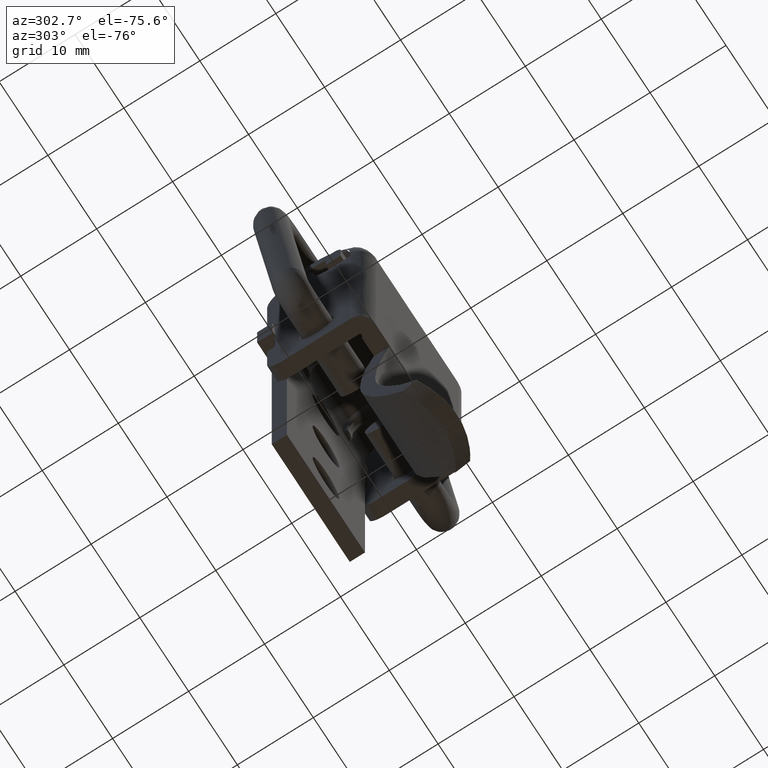
[diagram: clean part render]
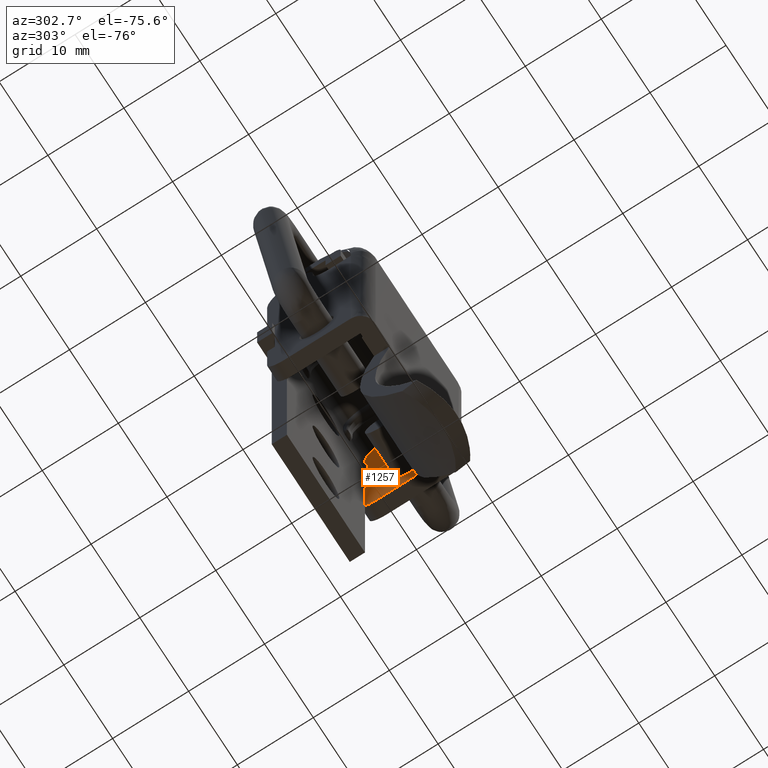
[diagram: same view with one face highlighted and labeled with its STEP entity id]
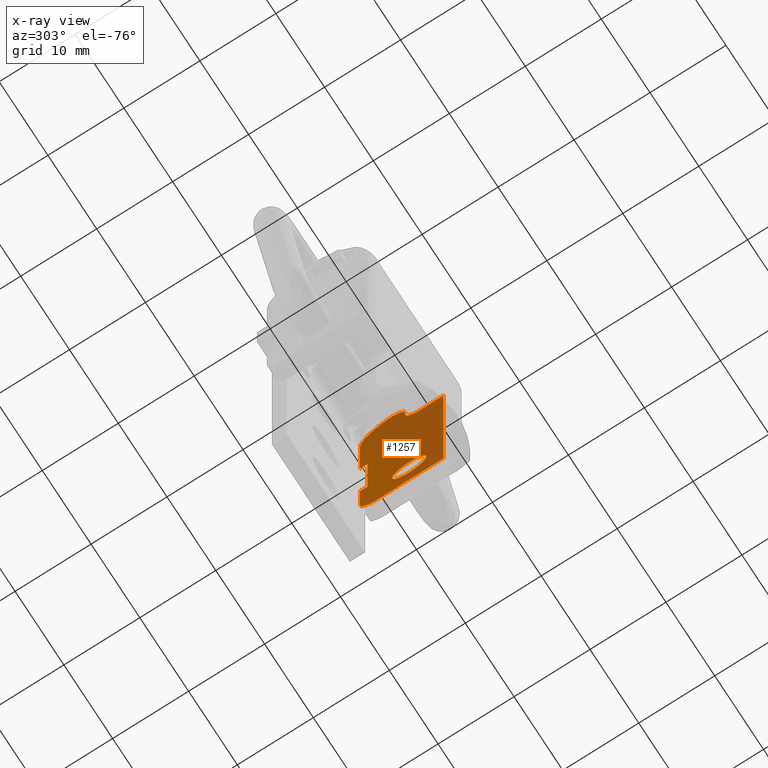
[diagram: x-ray of the same camera — body ghosted, the highlighted face saturated]
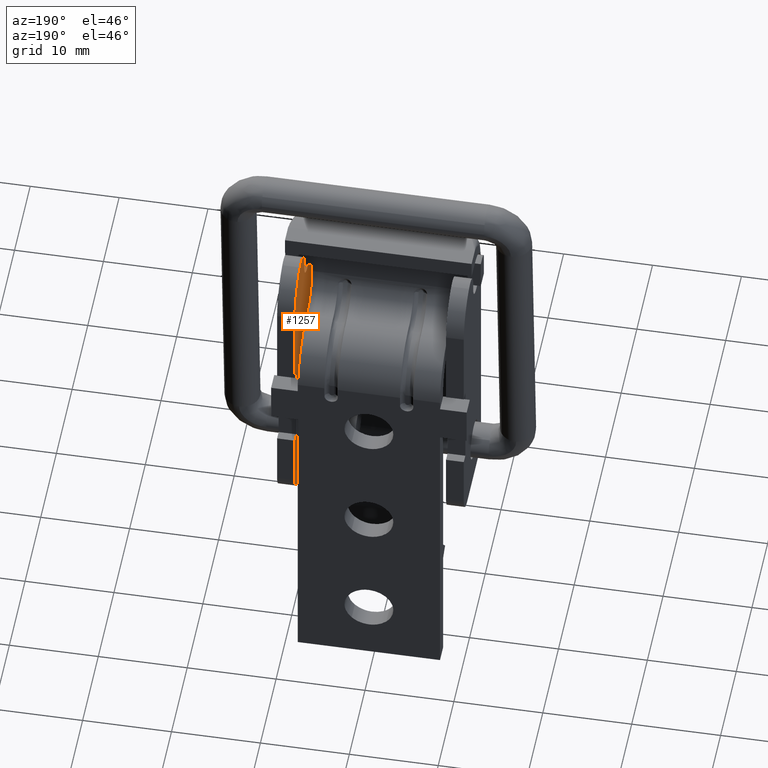
[diagram: same view with one face highlighted and labeled with its STEP entity id]
A machine part, auxiliary view. The second image highlights one B-rep face of the part: STEP entity #1257.
The next image is the same camera in x-ray: the body ghosted, the highlighted face saturated — about 68% of this face is hidden behind the body in this view.
A second angle (auxiliary view) of the same face is appended — the face is thin or edge-on in the first view.
In plain terms, the highlighted face is a freeform B-spline surface patch.
Its self-contained STEP definition (entity closure, byte-faithful):
#83=CARTESIAN_POINT('',(8.500000000000000,-1.612464560093486,1.569221775871860));
#84=VERTEX_POINT('',#83);
#90=CARTESIAN_POINT('',(8.500000000000000,0.0,2.250000000000000));
#91=VERTEX_POINT('',#90);
#92=CARTESIAN_POINT('',(8.500000000000000,0.0,2.250000000000000));
#93=CARTESIAN_POINT('',(8.500000000000011,-0.205995949104330,2.250057413758236));
#94=CARTESIAN_POINT('',(8.499999999999998,-0.599214729108291,2.195637701792308));
#95=CARTESIAN_POINT('',(8.499999999999991,-1.155582265871528,1.960712150496124));
#96=CARTESIAN_POINT('',(8.500000000000004,-1.468847847887490,1.716904368780269));
#97=CARTESIAN_POINT('',(8.500000000000000,-1.612464560093486,1.569221775871860));
#98=B_SPLINE_CURVE_WITH_KNOTS('',3,(#92,#93,#94,#95,#96,#97),.UNSPECIFIED.,.F.,.U.,(4,1,1,4),(0.000000024822547,0.617976578511312,1.179759103934288,1.797735657594886),.UNSPECIFIED.);
#99=EDGE_CURVE('',#91,#84,#98,.T.);
#101=CARTESIAN_POINT('',(8.500000000000000,2.249999999999802,0.000000943079006));
#102=VERTEX_POINT('',#101);
#103=CARTESIAN_POINT('',(8.500000000000000,2.249999999999802,0.000000943079006));
#104=CARTESIAN_POINT('',(8.499999999999998,2.250018007315028,0.147259344740279));
#105=CARTESIAN_POINT('',(8.500000000000000,2.220983534867859,0.441777002720753));
#106=CARTESIAN_POINT('',(8.500000000000011,2.089460778810403,0.875441199690906));
#107=CARTESIAN_POINT('',(8.499999999999993,1.873249016940023,1.274024443076075));
#108=CARTESIAN_POINT('',(8.500000000000005,1.593388052067294,1.606612430470988));
#109=CARTESIAN_POINT('',(8.500000000000005,1.243487349539739,1.893786026483920));
#110=CARTESIAN_POINT('',(8.499999999999986,0.726959097543601,2.165886580348997));
#111=CARTESIAN_POINT('',(8.500000000000021,0.276155375025387,2.250252421850397));
#112=CARTESIAN_POINT('',(8.500000000000000,0.0,2.250000000000000));
#113=B_SPLINE_CURVE_WITH_KNOTS('',3,(#103,#104,#105,#106,#107,#108,#109,#110,#111,#112),.UNSPECIFIED.,.F.,.U.,(4,1,1,1,1,1,1,4),(0.000000089899896,0.441774589114846,0.883578437799245,1.352984395066490,1.794741126176703,2.181330836682087,2.705959185706610,3.534313379939610),.UNSPECIFIED.);
#114=EDGE_CURVE('',#102,#91,#113,.T.);
#116=CARTESIAN_POINT('',(8.500000000000000,0.0,-2.250000000000000));
#117=VERTEX_POINT('',#116);
#118=CARTESIAN_POINT('',(8.500000000000000,0.0,-2.250000000000000));
#119=CARTESIAN_POINT('',(8.500000000000004,0.174876514031438,-2.250037262948710));
#120=CARTESIAN_POINT('',(8.500000000000005,0.506197661065653,-2.211173926283071));
#121=CARTESIAN_POINT('',(8.499999999999963,0.960278516402232,-2.051851052238468));
#122=CARTESIAN_POINT('',(8.500000000000091,1.325148635494998,-1.833119226005228));
#123=CARTESIAN_POINT('',(8.499999999999989,1.693804548871910,-1.511271835894335));
#124=CARTESIAN_POINT('',(8.499999999999989,1.993549165087641,-1.096555485874555));
#125=CARTESIAN_POINT('',(8.500000000000036,2.203446675744841,-0.552201751470571));
#126=CARTESIAN_POINT('',(8.499999999999933,2.250059460268517,-0.193284573321796));
#127=CARTESIAN_POINT('',(8.500000000000000,2.249999999999802,0.000000943079006));
#128=B_SPLINE_CURVE_WITH_KNOTS('',3,(#118,#119,#120,#121,#122,#123,#124,#125,#126,#127),.UNSPECIFIED.,.F.,.U.,(4,1,1,1,1,1,1,4),(0.000000089571876,0.524621855439952,0.994026821791030,1.435833792798051,1.794741666217927,2.457447310100589,2.954473065062495,3.534314443016120),.UNSPECIFIED.);
#129=EDGE_CURVE('',#117,#102,#128,.T.);
#131=CARTESIAN_POINT('',(8.500000000000000,-1.658874139306020,-1.520078171301804));
#132=VERTEX_POINT('',#131);
#133=CARTESIAN_POINT('',(8.500000000000000,-1.658874139306020,-1.520078171301804));
#134=CARTESIAN_POINT('',(8.500000000000007,-1.507972378416117,-1.684894541594854));
#135=CARTESIAN_POINT('',(8.499999999999995,-1.232926194104110,-1.907140146235586));
#136=CARTESIAN_POINT('',(8.500000000000002,-0.670203447280249,-2.176825329095858));
#137=CARTESIAN_POINT('',(8.500000000000000,-0.272075368996333,-2.250253278948949));
#138=CARTESIAN_POINT('',(8.500000000000000,0.0,-2.250000000000000));
#139=B_SPLINE_CURVE_WITH_KNOTS('',3,(#133,#134,#135,#136,#137,#138),.UNSPECIFIED.,.F.,.U.,(4,1,1,4),(0.000000026457851,0.670356070786003,1.049241503063118,1.865333714303394),.UNSPECIFIED.);
#140=EDGE_CURVE('',#132,#117,#139,.T.);
#226=CARTESIAN_POINT('',(8.500000000000000,-2.249999999999802,-0.000000943079026));
#227=VERTEX_POINT('',#226);
#228=CARTESIAN_POINT('',(8.500000000000000,-2.249999999999802,-0.000000943079026));
#229=CARTESIAN_POINT('',(8.500000000000004,-2.250205818783069,-0.260810641298893));
#230=CARTESIAN_POINT('',(8.500000000000002,-2.179666763247639,-0.660522819976244));
#231=CARTESIAN_POINT('',(8.499999999999993,-1.941411350246428,-1.165909998933466));
#232=CARTESIAN_POINT('',(8.500000000000005,-1.764602079013604,-1.404734960936116));
#233=CARTESIAN_POINT('',(8.500000000000000,-1.658874139306020,-1.520078171301804));
#234=B_SPLINE_CURVE_WITH_KNOTS('',3,(#228,#229,#230,#231,#232,#233),.UNSPECIFIED.,.F.,.U.,(4,1,1,4),(0.000000010073891,0.782347575375367,1.199599238936291,1.669007660436724),.UNSPECIFIED.);
#235=EDGE_CURVE('',#227,#132,#234,.T.);
#237=CARTESIAN_POINT('',(8.500000000000000,-1.612464560093486,1.569221775871860));
#238=CARTESIAN_POINT('',(8.500000000000011,-1.776586189426513,1.400768279057042));
#239=CARTESIAN_POINT('',(8.499999999999993,-1.977130760018655,1.116493696190392));
#240=CARTESIAN_POINT('',(8.500000000000014,-2.195614570542429,0.578788439400664));
#241=CARTESIAN_POINT('',(8.499999999999998,-2.250122548874541,0.235179651512645));
#242=CARTESIAN_POINT('',(8.500000000000000,-2.249999999999802,-0.000000943079026));
#243=B_SPLINE_CURVE_WITH_KNOTS('',3,(#237,#238,#239,#240,#241,#242),.UNSPECIFIED.,.F.,.U.,(4,1,1,4),(0.000000020894632,0.705490598085889,1.031088454538808,1.736579031758140),.UNSPECIFIED.);
#244=EDGE_CURVE('',#84,#227,#243,.T.);
#1119=CARTESIAN_POINT('',(8.500000000000000,-5.049449978679779,28.967729769470399));
#1120=CARTESIAN_POINT('',(8.500000000000000,7.049450273722947,28.967729769470399));
#1121=CARTESIAN_POINT('',(8.500000000000000,-5.049449978679779,-7.139758048306728));
#1122=CARTESIAN_POINT('',(8.500000000000000,7.049450273722947,-7.139758048306728));
#1123=B_SPLINE_SURFACE_WITH_KNOTS('',1,1,((#1119,#1121),(#1120,#1122)),.UNSPECIFIED.,.F.,.F.,.U.,(2,2),(2,2),(0.0,12.098900252402730),(0.0,36.107487817777127),.UNSPECIFIED.);
#1124=CARTESIAN_POINT('',(8.500000000000000,-4.499999999999915,-5.500000000000000));
#1125=VERTEX_POINT('',#1124);
#1126=CARTESIAN_POINT('',(8.500000000000000,4.250000000000000,-5.500000000000000));
#1127=VERTEX_POINT('',#1126);
#1128=CARTESIAN_POINT('',(8.500000000000000,-4.499999999999915,-5.500000000000000));
#1129=CARTESIAN_POINT('',(8.500000000000000,4.250000000000000,-5.500000000000000));
#1130=QUASI_UNIFORM_CURVE('',1,(#1128,#1129),.UNSPECIFIED.,.F.,.U.);
#1131=EDGE_CURVE('',#1125,#1127,#1130,.T.);
#1132=ORIENTED_EDGE('',*,*,#1131,.F.);
#1133=CARTESIAN_POINT('',(8.500000000000000,-4.499999999999915,22.500000000000000));
#1134=VERTEX_POINT('',#1133);
#1135=CARTESIAN_POINT('',(8.500000000000000,-4.499999999999915,22.500000000000000));
#1136=CARTESIAN_POINT('',(8.500000000000000,-4.499999999999915,-5.500000000000000));
#1137=QUASI_UNIFORM_CURVE('',1,(#1135,#1136),.UNSPECIFIED.,.F.,.U.);
#1138=EDGE_CURVE('',#1134,#1125,#1137,.T.);
#1139=ORIENTED_EDGE('',*,*,#1138,.F.);
#1140=CARTESIAN_POINT('',(8.500000000000000,-1.499999999999914,22.500000000000000));
#1141=VERTEX_POINT('',#1140);
#1142=CARTESIAN_POINT('',(8.500000000000000,-4.499999999999915,22.500000000000000));
#1143=CARTESIAN_POINT('',(8.500000000000000,-1.499999999999914,22.500000000000000));
#1144=QUASI_UNIFORM_CURVE('',1,(#1142,#1143),.UNSPECIFIED.,.F.,.U.);
#1145=EDGE_CURVE('',#1134,#1141,#1144,.T.);
#1146=ORIENTED_EDGE('',*,*,#1145,.T.);
#1147=CARTESIAN_POINT('',(8.500000000000000,0.500000000000000,24.500000000000000));
#1148=VERTEX_POINT('',#1147);
#1149=CARTESIAN_POINT('',(8.500000000000000,-1.499999999999914,22.500000000000000));
#1150=CARTESIAN_POINT('',(8.500000000000000,-1.287270726187100,22.499873417525571));
#1151=CARTESIAN_POINT('',(8.500000000000004,-0.943739909201290,22.555361138875629));
#1152=CARTESIAN_POINT('',(8.499999999999988,-0.537913056102324,22.735293748458950));
#1153=CARTESIAN_POINT('',(8.500000000000009,-0.237805520769674,22.935830795569920));
#1154=CARTESIAN_POINT('',(8.500000000000002,0.071887561663161,23.230534625474110));
#1155=CARTESIAN_POINT('',(8.500000000000000,0.301923643167067,23.593863441175628));
#1156=CARTESIAN_POINT('',(8.500000000000020,0.462175408421175,24.041886723843351));
#1157=CARTESIAN_POINT('',(8.499999999999991,0.500065293338141,24.320003954297071));
#1158=CARTESIAN_POINT('',(8.500000000000000,0.500000000000000,24.500000000000000));
#1159=B_SPLINE_CURVE_WITH_KNOTS('',3,(#1149,#1150,#1151,#1152,#1153,#1154,#1155,#1156,#1157,#1158),.UNSPECIFIED.,.F.,.U.,(4,1,1,1,1,1,1,4),(0.000000039029129,0.638151969917336,1.030863850941391,1.325399081861064,1.718096464635295,2.307164912914421,2.601698795142947,3.141671488668994),.UNSPECIFIED.);
#1160=EDGE_CURVE('',#1141,#1148,#1159,.T.);
#1161=ORIENTED_EDGE('',*,*,#1160,.T.);
#1162=CARTESIAN_POINT('',(8.500000000000000,0.500000000000000,25.328427124746099));
#1163=VERTEX_POINT('',#1162);
#1164=CARTESIAN_POINT('',(8.500000000000000,0.500000000000000,24.500000000000000));
#1165=CARTESIAN_POINT('',(8.500000000000000,0.500000000000000,25.328427124746099));
#1166=QUASI_UNIFORM_CURVE('',1,(#1164,#1165),.UNSPECIFIED.,.F.,.U.);
#1167=EDGE_CURVE('',#1148,#1163,#1166,.T.);
#1168=ORIENTED_EDGE('',*,*,#1167,.T.);
#1169=CARTESIAN_POINT('',(8.500000000000000,3.166666666666610,27.214045207910250));
#1170=VERTEX_POINT('',#1169);
#1171=CARTESIAN_POINT('',(8.500000000000000,3.166666666666610,27.214045207910250));
#1172=CARTESIAN_POINT('',(8.500000000000005,3.044705952486789,27.257178923644389));
#1173=CARTESIAN_POINT('',(8.499999999999998,2.772966455594129,27.324471583121959));
#1174=CARTESIAN_POINT('',(8.499999999999989,2.292573667427833,27.340816197151170));
#1175=CARTESIAN_POINT('',(8.500000000000028,1.772992812455864,27.220609663087838));
#1176=CARTESIAN_POINT('',(8.499999999999956,1.300029710373985,26.955391380001242));
#1177=CARTESIAN_POINT('',(8.500000000000050,0.981873465817354,26.650044809181260));
#1178=CARTESIAN_POINT('',(8.499999999999954,0.729576258724652,26.290663026664291));
#1179=CARTESIAN_POINT('',(8.499999999999927,0.548440522340913,25.865774992003018));
#1180=CARTESIAN_POINT('',(8.500000000000252,0.499941550817590,25.507551239456561));
#1181=CARTESIAN_POINT('',(8.500000000000000,0.500000000000000,25.328427124746099));
#1182=B_SPLINE_CURVE_WITH_KNOTS('',3,(#1171,#1172,#1173,#1174,#1175,#1176,#1177,#1178,#1179,#1180,#1181),.UNSPECIFIED.,.F.,.U.,(4,1,1,1,1,1,1,1,4),(0.000000150485084,0.388094550435460,0.835910004527804,1.432993086791058,1.970334179347815,2.448015659424339,2.746559099747779,3.283937327322817,3.821301945272779),.UNSPECIFIED.);
#1183=EDGE_CURVE('',#1170,#1163,#1182,.T.);
#1184=ORIENTED_EDGE('',*,*,#1183,.F.);
#1185=CARTESIAN_POINT('',(8.500000000000000,6.500000000000090,22.500000000000000));
#1186=VERTEX_POINT('',#1185);
#1187=CARTESIAN_POINT('',(8.500000000000000,6.500000000000090,22.500000000000000));
#1188=CARTESIAN_POINT('',(8.499999999999972,6.500129376375572,22.948795983865050));
#1189=CARTESIAN_POINT('',(8.500000000000057,6.391378459688669,23.750137926513730));
#1190=CARTESIAN_POINT('',(8.499999999999959,5.995734677893965,24.754958000577449));
#1191=CARTESIAN_POINT('',(8.500000000000009,5.549653056764023,25.462294398232562));
#1192=CARTESIAN_POINT('',(8.500000000000064,4.986514607723207,26.121801902050400));
#1193=CARTESIAN_POINT('',(8.499999999999945,4.224936012139182,26.745273274668889));
#1194=CARTESIAN_POINT('',(8.500000000000020,3.529368536885340,27.085883543370969));
#1195=CARTESIAN_POINT('',(8.500000000000000,3.166666666666610,27.214045207910250));
#1196=B_SPLINE_CURVE_WITH_KNOTS('',3,(#1187,#1188,#1189,#1190,#1191,#1192,#1193,#1194,#1195),.UNSPECIFIED.,.F.,.U.,(4,1,1,1,1,1,4),(0.000000040794900,1.346365854453086,2.404230333579648,3.221656648768176,3.846760451653443,5.000792744075819,6.154820803454445),.UNSPECIFIED.);
#1197=EDGE_CURVE('',#1186,#1170,#1196,.T.);
#1198=ORIENTED_EDGE('',*,*,#1197,.F.);
#1199=CARTESIAN_POINT('',(8.500000000000000,6.500000000000090,13.0));
#1200=VERTEX_POINT('',#1199);
#1201=CARTESIAN_POINT('',(8.500000000000000,6.500000000000090,22.500000000000000));
#1202=CARTESIAN_POINT('',(8.500000000000000,6.500000000000090,13.0));
#1203=QUASI_UNIFORM_CURVE('',1,(#1201,#1202),.UNSPECIFIED.,.F.,.U.);
#1204=EDGE_CURVE('',#1186,#1200,#1203,.T.);
#1205=ORIENTED_EDGE('',*,*,#1204,.T.);
#1206=CARTESIAN_POINT('',(8.500000000000000,5.500000000000090,13.0));
#1207=VERTEX_POINT('',#1206);
#1208=CARTESIAN_POINT('',(8.500000000000000,6.500000000000090,13.0));
#1209=CARTESIAN_POINT('',(8.500000000000000,5.500000000000090,13.0));
#1210=QUASI_UNIFORM_CURVE('',1,(#1208,#1209),.UNSPECIFIED.,.F.,.U.);
#1211=EDGE_CURVE('',#1200,#1207,#1210,.T.);
#1212=ORIENTED_EDGE('',*,*,#1211,.T.);
#1213=CARTESIAN_POINT('',(8.500000000000000,5.500000000000090,3.0));
#1214=VERTEX_POINT('',#1213);
#1215=CARTESIAN_POINT('',(8.500000000000000,5.500000000000090,13.0));
#1216=CARTESIAN_POINT('',(8.500000000000000,5.500000000000090,3.0));
#1217=QUASI_UNIFORM_CURVE('',1,(#1215,#1216),.UNSPECIFIED.,.F.,.U.);
#1218=EDGE_CURVE('',#1207,#1214,#1217,.T.);
#1219=ORIENTED_EDGE('',*,*,#1218,.T.);
#1220=CARTESIAN_POINT('',(8.500000000000000,6.500000000000090,3.0));
#1221=VERTEX_POINT('',#1220);
#1222=CARTESIAN_POINT('',(8.500000000000000,5.500000000000090,3.0));
#1223=CARTESIAN_POINT('',(8.500000000000000,6.500000000000090,3.0));
#1224=QUASI_UNIFORM_CURVE('',1,(#1222,#1223),.UNSPECIFIED.,.F.,.U.);
#1225=EDGE_CURVE('',#1214,#1221,#1224,.T.);
#1226=ORIENTED_EDGE('',*,*,#1225,.T.);
#1227=CARTESIAN_POINT('',(8.500000000000000,6.500000000000090,-3.250000000000000));
#1228=VERTEX_POINT('',#1227);
#1229=CARTESIAN_POINT('',(8.500000000000000,6.500000000000090,3.0));
#1230=CARTESIAN_POINT('',(8.500000000000000,6.500000000000090,-3.250000000000000));
#1231=QUASI_UNIFORM_CURVE('',1,(#1229,#1230),.UNSPECIFIED.,.F.,.U.);
#1232=EDGE_CURVE('',#1221,#1228,#1231,.T.);
#1233=ORIENTED_EDGE('',*,*,#1232,.T.);
#1234=CARTESIAN_POINT('',(8.500000000000000,4.250000000000000,-5.500000000000000));
#1235=CARTESIAN_POINT('',(8.500000000000007,4.406467913509728,-5.500024340796509));
#1236=CARTESIAN_POINT('',(8.499999999999989,4.700980564049766,-5.469149930423956));
#1237=CARTESIAN_POINT('',(8.499999999999989,5.151234963255456,-5.329569028050257));
#1238=CARTESIAN_POINT('',(8.500000000000007,5.596235389793021,-5.081118880693095));
#1239=CARTESIAN_POINT('',(8.499999999999973,6.015406031730355,-4.686933093802191));
#1240=CARTESIAN_POINT('',(8.500000000000094,6.317499918825670,-4.196665292413724));
#1241=CARTESIAN_POINT('',(8.500000000000020,6.471125578384404,-3.700989979551738));
#1242=CARTESIAN_POINT('',(8.499999999999968,6.500009282998050,-3.388056359313096));
#1243=CARTESIAN_POINT('',(8.500000000000000,6.500000000000090,-3.250000000000000));
#1244=B_SPLINE_CURVE_WITH_KNOTS('',3,(#1234,#1235,#1236,#1237,#1238,#1239,#1240,#1241,#1242,#1243),.UNSPECIFIED.,.F.,.U.,(4,1,1,1,1,1,1,4),(0.000000089732300,0.469400629984995,0.883578570545886,1.408204783201477,1.988032507654121,2.595511318350262,3.120139745613581,3.534313911478062),.UNSPECIFIED.);
#1245=EDGE_CURVE('',#1127,#1228,#1244,.T.);
#1246=ORIENTED_EDGE('',*,*,#1245,.F.);
#1247=EDGE_LOOP('',(#1132,#1139,#1146,#1161,#1168,#1184,#1198,#1205,#1212,#1219,#1226,#1233,#1246));
#1248=FACE_OUTER_BOUND('',#1247,.T.);
#1249=ORIENTED_EDGE('',*,*,#129,.T.);
#1250=ORIENTED_EDGE('',*,*,#114,.T.);
#1251=ORIENTED_EDGE('',*,*,#99,.T.);
#1252=ORIENTED_EDGE('',*,*,#244,.T.);
#1253=ORIENTED_EDGE('',*,*,#235,.T.);
#1254=ORIENTED_EDGE('',*,*,#140,.T.);
#1255=EDGE_LOOP('',(#1249,#1250,#1251,#1252,#1253,#1254));
#1256=FACE_BOUND('',#1255,.T.);
#1257=ADVANCED_FACE('',(#1248,#1256),#1123,.T.);